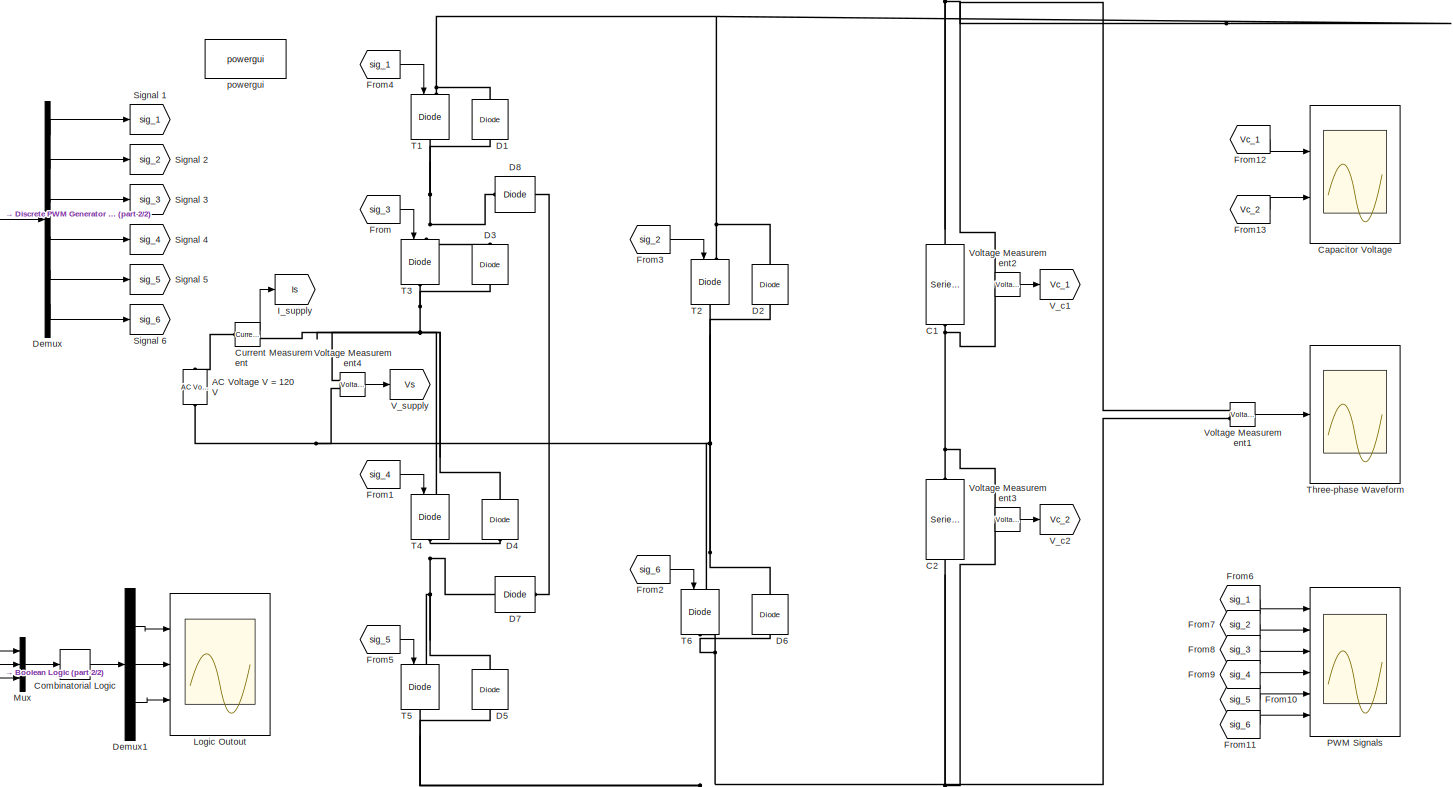
[diagram: root canvas - part 1/2, most of the canvas]
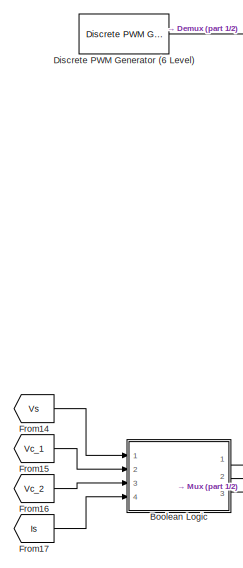
[diagram: root canvas - part 2/2, middle left region]
MODEL slx_a872d994b017
KIND model
CONFIG AbsTol = auto
CONFIG EnableMultiTasking = off
CONFIG FixedStep = auto
CONFIG MaxStep = auto
CONFIG MinStep = auto
CONFIG RelTol = 1e-3
CONFIG SampleTimeConstraint = Unconstrained
CONFIG Solver = VariableStepAuto
CONFIG SolverName = VariableStepAuto
CONFIG StartTime = 0.0
CONFIG StopTime = 0.05
BLOCK [Reference] AC Voltage V = 120 V  REF=powerlib/Electrical
Sources/AC Voltage Source
  Ports = [0, 0, 0, 0, 0, 1, 1]
  SourceBlock = powerlib/Electrical\nSources/AC Voltage Source
  SourceProductBaseCode = PS
  SourceProductName = Simscape Electrical
  SourceType = AC Voltage Source
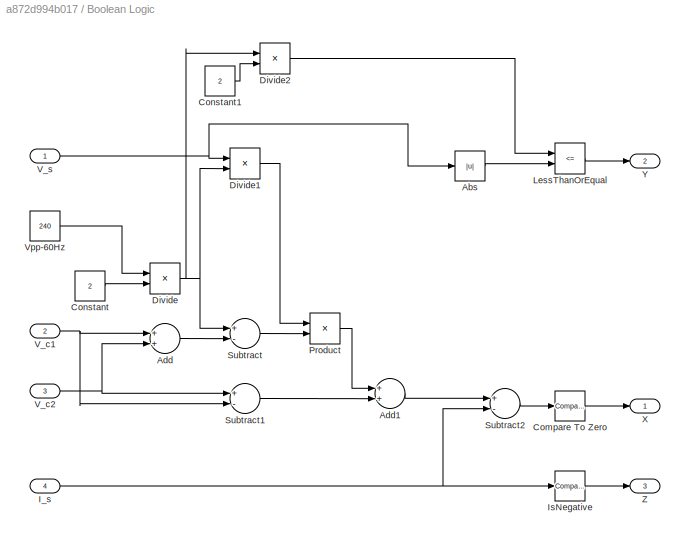
BLOCK [SubSystem] Boolean Logic
  Ports = [4, 3]
  RequestExecContextInheritance = off
BLOCK [Abs] Boolean Logic/Abs
  SaturateOnIntegerOverflow = off
BLOCK [Sum] Boolean Logic/Add
  InputSameDT = off
  OutDataTypeStr = Inherit: Inherit via internal rule
  Ports = [2, 1]
  SaturateOnIntegerOverflow = off
BLOCK [Sum] Boolean Logic/Add1
  InputSameDT = off
  OutDataTypeStr = Inherit: Inherit via internal rule
  Ports = [2, 1]
  SaturateOnIntegerOverflow = off
BLOCK [Reference] Boolean Logic/Compare To Zero  REF=simulink/Logic and Bit
Operations/Compare
To Zero
  Ports = [1, 1]
  SourceBlock = simulink/Logic and Bit\nOperations/Compare\nTo Zero
  SourceProductBaseCode = SL
  SourceProductName = Simulink
  SourceType = Compare To Zero
BLOCK [Constant] Boolean Logic/Constant
  Value = 2
BLOCK [Constant] Boolean Logic/Constant1
  Value = 2
BLOCK [Product] Boolean Logic/Divide
  InputSameDT = off
  Inputs = */
  OutDataTypeStr = Inherit: Inherit via internal rule
  Ports = [2, 1]
  RndMeth = Floor
  SaturateOnIntegerOverflow = off
BLOCK [Product] Boolean Logic/Divide1
  InputSameDT = off
  Inputs = */
  OutDataTypeStr = Inherit: Inherit via internal rule
  Ports = [2, 1]
  RndMeth = Floor
  SaturateOnIntegerOverflow = off
BLOCK [Product] Boolean Logic/Divide2
  InputSameDT = off
  Inputs = */
  OutDataTypeStr = Inherit: Inherit via internal rule
  Ports = [2, 1]
  RndMeth = Floor
  SaturateOnIntegerOverflow = off
BLOCK [Inport] Boolean Logic/I_s
  IconDisplay = Port number
  Port = 4
BLOCK [Reference] Boolean Logic/IsNegative  REF=simulink/Logic and Bit
Operations/Compare
To Zero
  Ports = [1, 1]
  SourceBlock = simulink/Logic and Bit\nOperations/Compare\nTo Zero
  SourceProductBaseCode = SL
  SourceProductName = Simulink
  SourceType = Compare To Zero
BLOCK [RelationalOperator] Boolean Logic/LessThanOrEqual
  InputSameDT = off
  Operator = <=
  OutDataTypeStr = boolean
  Ports = [2, 1]
  RndMeth = Simplest
BLOCK [Product] Boolean Logic/Product
  InputSameDT = off
  OutDataTypeStr = Inherit: Inherit via internal rule
  Ports = [2, 1]
  RndMeth = Floor
  SaturateOnIntegerOverflow = off
BLOCK [Sum] Boolean Logic/Subtract
  InputSameDT = off
  Inputs = +-
  OutDataTypeStr = Inherit: Inherit via internal rule
  Ports = [2, 1]
  SaturateOnIntegerOverflow = off
BLOCK [Sum] Boolean Logic/Subtract1
  InputSameDT = off
  Inputs = +-
  OutDataTypeStr = Inherit: Inherit via internal rule
  Ports = [2, 1]
  SaturateOnIntegerOverflow = off
BLOCK [Sum] Boolean Logic/Subtract2
  InputSameDT = off
  Inputs = +-
  OutDataTypeStr = Inherit: Inherit via internal rule
  Ports = [2, 1]
  SaturateOnIntegerOverflow = off
BLOCK [Inport] Boolean Logic/V_c1
  IconDisplay = Port number
  Port = 2
BLOCK [Inport] Boolean Logic/V_c2
  IconDisplay = Port number
  Port = 3
BLOCK [Inport] Boolean Logic/V_s
  IconDisplay = Port number
BLOCK [Constant] Boolean Logic/Vpp-60Hz
  Value = 240
BLOCK [Outport] Boolean Logic/X
  IconDisplay = Port number
BLOCK [Outport] Boolean Logic/Y
  IconDisplay = Port number
  Port = 2
BLOCK [Outport] Boolean Logic/Z
  IconDisplay = Port number
  Port = 3
BLOCK [Reference] C1  REF=powerlib/Elements/Series RLC Branch
  Ports = [0, 0, 0, 0, 0, 1, 1]
  SourceBlock = powerlib/Elements/Series RLC Branch
  SourceProductBaseCode = PS
  SourceProductName = Simscape Electrical
  SourceType = Series RLC Branch
BLOCK [Reference] C2  REF=powerlib/Elements/Series RLC Branch
  Ports = [0, 0, 0, 0, 0, 1, 1]
  SourceBlock = powerlib/Elements/Series RLC Branch
  SourceProductBaseCode = PS
  SourceProductName = Simscape Electrical
  SourceType = Series RLC Branch
BLOCK [Scope] Capacitor Voltage
  Floating = off
  NumInputPorts = 2
  Ports = [2]
  ScopeSpecificationString = Simulink.scopes.TimeScopeBlockCfg('CurrentConfiguration', extmgr.ConfigurationSet(extmgr.Configuration('Core','General UI',true),extmgr.Configuration('Core','Source UI',true),extmgr.Configuration('Sources','WiredSimulink',true,'DataLoggingVariableName','ScopeData1'),extmgr.Configuration('Visuals','Time Domain',true,'SerializedDisplays',{struct('MinYLimReal','-8.46933','MaxYLimReal','76.17649','YLa...<+2165ch>
BLOCK [CombinatorialLogic] Combinatorial Logic
  TruthTable = [0 0 0; 0 0 1; 0 1 0; 0 1 1; 1 0 0; 1 0 1; 1 1 0; 1 1 1]
BLOCK [Reference] Current Measurement  REF=powerlib/Measurements/Current Measurement
  Ports = [0, 1, 0, 0, 0, 1, 1]
  SourceBlock = powerlib/Measurements/Current Measurement
  SourceProductBaseCode = PS
  SourceProductName = Simscape Electrical
  SourceType = Current Measurement
  UserDataPersistent = on
BLOCK [Reference] D1  REF=powerlib/Power
Electronics/Diode
  Ports = [0, 0, 0, 0, 0, 1, 1]
  SourceBlock = powerlib/Power\nElectronics/Diode
  SourceProductBaseCode = PS
  SourceProductName = Simscape Electrical
  SourceType = Diode
BLOCK [Reference] D2  REF=powerlib/Power
Electronics/Diode
  Ports = [0, 0, 0, 0, 0, 1, 1]
  SourceBlock = powerlib/Power\nElectronics/Diode
  SourceProductBaseCode = PS
  SourceProductName = Simscape Electrical
  SourceType = Diode
BLOCK [Reference] D3  REF=powerlib/Power
Electronics/Diode
  Ports = [0, 0, 0, 0, 0, 1, 1]
  SourceBlock = powerlib/Power\nElectronics/Diode
  SourceProductBaseCode = PS
  SourceProductName = Simscape Electrical
  SourceType = Diode
BLOCK [Reference] D4  REF=powerlib/Power
Electronics/Diode
  Ports = [0, 0, 0, 0, 0, 1, 1]
  SourceBlock = powerlib/Power\nElectronics/Diode
  SourceProductBaseCode = PS
  SourceProductName = Simscape Electrical
  SourceType = Diode
BLOCK [Reference] D5  REF=powerlib/Power
Electronics/Diode
  Ports = [0, 0, 0, 0, 0, 1, 1]
  SourceBlock = powerlib/Power\nElectronics/Diode
  SourceProductBaseCode = PS
  SourceProductName = Simscape Electrical
  SourceType = Diode
BLOCK [Reference] D6  REF=powerlib/Power
Electronics/Diode
  Ports = [0, 0, 0, 0, 0, 1, 1]
  SourceBlock = powerlib/Power\nElectronics/Diode
  SourceProductBaseCode = PS
  SourceProductName = Simscape Electrical
  SourceType = Diode
BLOCK [Reference] D7  REF=powerlib/Power
Electronics/Diode
  Ports = [0, 0, 0, 0, 0, 1, 1]
  SourceBlock = powerlib/Power\nElectronics/Diode
  SourceProductBaseCode = PS
  SourceProductName = Simscape Electrical
  SourceType = Diode
BLOCK [Reference] D8  REF=powerlib/Power
Electronics/Diode
  Ports = [0, 0, 0, 0, 0, 1, 1]
  SourceBlock = powerlib/Power\nElectronics/Diode
  SourceProductBaseCode = PS
  SourceProductName = Simscape Electrical
  SourceType = Diode
BLOCK [Demux] Demux
  DisplayOption = bar
  Outputs = 6
  Ports = [1, 6]
BLOCK [Demux] Demux1
  DisplayOption = bar
  Outputs = 3
  Ports = [1, 3]
BLOCK [Reference] Discrete PWM Generator (6 Level)  REF=powerlib_extras/Discrete 
Control Blocks/Discrete
PWM Generator
  Ports = [0, 1]
  SourceBlock = powerlib_extras/Discrete \nControl Blocks/Discrete\nPWM Generator
  SourceProductBaseCode = PS
  SourceProductName = Simscape Electrical
  SourceType = Discrete PWM Generator
BLOCK [From] From
  GotoTag = sig_3
  IconDisplay = Signal name
BLOCK [From] From1
  GotoTag = sig_4
  IconDisplay = Signal name
BLOCK [From] From10
  GotoTag = sig_5
  IconDisplay = Signal name
BLOCK [From] From11
  GotoTag = sig_6
  IconDisplay = Signal name
BLOCK [From] From12
  GotoTag = Vc_1
  IconDisplay = Signal name
BLOCK [From] From13
  GotoTag = Vc_2
  IconDisplay = Signal name
BLOCK [From] From14
  GotoTag = Vs
  IconDisplay = Signal name
BLOCK [From] From15
  GotoTag = Vc_1
  IconDisplay = Signal name
BLOCK [From] From16
  GotoTag = Vc_2
  IconDisplay = Signal name
BLOCK [From] From17
  GotoTag = Is
  IconDisplay = Signal name
BLOCK [From] From2
  GotoTag = sig_6
  IconDisplay = Signal name
BLOCK [From] From3
  GotoTag = sig_2
  IconDisplay = Signal name
BLOCK [From] From4
  GotoTag = sig_1
  IconDisplay = Signal name
BLOCK [From] From5
  GotoTag = sig_5
  IconDisplay = Signal name
BLOCK [From] From6
  GotoTag = sig_1
  IconDisplay = Signal name
BLOCK [From] From7
  GotoTag = sig_2
  IconDisplay = Signal name
BLOCK [From] From8
  GotoTag = sig_3
  IconDisplay = Signal name
BLOCK [From] From9
  GotoTag = sig_4
  IconDisplay = Signal name
BLOCK [Goto] I_supply
  GotoTag = Is
  IconDisplay = Signal name
BLOCK [Scope] Logic Outout
  Floating = off
  NumInputPorts = 3
  Ports = [3]
  ScopeSpecificationString = Simulink.scopes.TimeScopeBlockCfg('CurrentConfiguration', extmgr.ConfigurationSet(extmgr.Configuration('Core','General UI',true),extmgr.Configuration('Core','Source UI',true),extmgr.Configuration('Sources','WiredSimulink',true,'DataLoggingVariableName','ScopeData1'),extmgr.Configuration('Visuals','Time Domain',true,'SerializedDisplays',{struct('MinYLimReal','-0.125','MaxYLimReal','1.125','YLabelRe...<+3088ch>
BLOCK [Mux] Mux
  DisplayOption = bar
  Inputs = 3
  Ports = [3, 1]
BLOCK [Scope] PWM Signals
  Floating = off
  NumInputPorts = 6
  Ports = [6]
  ScopeSpecificationString = Simulink.scopes.TimeScopeBlockCfg('CurrentConfiguration', extmgr.ConfigurationSet(extmgr.Configuration('Core','General UI',true),extmgr.Configuration('Core','Source UI',true),extmgr.Configuration('Sources','WiredSimulink',true,'DataLoggingSaveFormat','StructureWithTime','DataLoggingLimitDataPoints',true,'DataLoggingDecimation','1','DataLoggingDecimateData',true,'DataLoggingVariableName','ScopeData...<+5127ch>
BLOCK [Goto] Signal 1
  GotoTag = sig_1
  IconDisplay = Signal name
BLOCK [Goto] Signal 2
  GotoTag = sig_2
  IconDisplay = Signal name
BLOCK [Goto] Signal 3
  GotoTag = sig_3
  IconDisplay = Signal name
BLOCK [Goto] Signal 4
  GotoTag = sig_4
  IconDisplay = Signal name
BLOCK [Goto] Signal 5
  GotoTag = sig_5
  IconDisplay = Signal name
BLOCK [Goto] Signal 6
  GotoTag = sig_6
  IconDisplay = Signal name
BLOCK [Reference] T1  REF=powerlib/Power
Electronics/IGBT//Diode
  Ports = [1, 0, 0, 0, 0, 1, 1]
  SourceBlock = powerlib/Power\nElectronics/IGBT//Diode
  SourceProductBaseCode = PS
  SourceProductName = Simscape Electrical
  SourceType = IGBT/Diode
BLOCK [Reference] T2  REF=powerlib/Power
Electronics/IGBT//Diode
  Ports = [1, 0, 0, 0, 0, 1, 1]
  SourceBlock = powerlib/Power\nElectronics/IGBT//Diode
  SourceProductBaseCode = PS
  SourceProductName = Simscape Electrical
  SourceType = IGBT/Diode
BLOCK [Reference] T3  REF=powerlib/Power
Electronics/IGBT//Diode
  Ports = [1, 0, 0, 0, 0, 1, 1]
  SourceBlock = powerlib/Power\nElectronics/IGBT//Diode
  SourceProductBaseCode = PS
  SourceProductName = Simscape Electrical
  SourceType = IGBT/Diode
BLOCK [Reference] T4  REF=powerlib/Power
Electronics/IGBT//Diode
  Ports = [1, 0, 0, 0, 0, 1, 1]
  SourceBlock = powerlib/Power\nElectronics/IGBT//Diode
  SourceProductBaseCode = PS
  SourceProductName = Simscape Electrical
  SourceType = IGBT/Diode
BLOCK [Reference] T5  REF=powerlib/Power
Electronics/IGBT//Diode
  Ports = [1, 0, 0, 0, 0, 1, 1]
  SourceBlock = powerlib/Power\nElectronics/IGBT//Diode
  SourceProductBaseCode = PS
  SourceProductName = Simscape Electrical
  SourceType = IGBT/Diode
BLOCK [Reference] T6  REF=powerlib/Power
Electronics/IGBT//Diode
  Ports = [1, 0, 0, 0, 0, 1, 1]
  SourceBlock = powerlib/Power\nElectronics/IGBT//Diode
  SourceProductBaseCode = PS
  SourceProductName = Simscape Electrical
  SourceType = IGBT/Diode
BLOCK [Scope] Three-phase Waveform
  Floating = off
  NumInputPorts = 1
  Ports = [1]
  ScopeSpecificationString = Simulink.scopes.TimeScopeBlockCfg('CurrentConfiguration', extmgr.ConfigurationSet(extmgr.Configuration('Core','General UI',true),extmgr.Configuration('Core','Source UI',true),extmgr.Configuration('Sources','WiredSimulink',true),extmgr.Configuration('Visuals','Time Domain',true,'SerializedDisplays',{struct('MinYLimReal','-18.15368','MaxYLimReal','163.25574','YLabelReal','','MinYLimMag','0.00000','M...<+1481ch>
BLOCK [Goto] V_c1
  GotoTag = Vc_1
  IconDisplay = Signal name
BLOCK [Goto] V_c2
  GotoTag = Vc_2
  IconDisplay = Signal name
BLOCK [Goto] V_supply
  GotoTag = Vs
  IconDisplay = Signal name
BLOCK [Reference] Voltage Measurement1  REF=powerlib/Measurements/Voltage Measurement
  Ports = [0, 1, 0, 0, 0, 2]
  SourceBlock = powerlib/Measurements/Voltage Measurement
  SourceProductBaseCode = PS
  SourceProductName = Simscape Electrical
  SourceType = Voltage Measurement
  UserDataPersistent = on
BLOCK [Reference] Voltage Measurement2  REF=powerlib/Measurements/Voltage Measurement
  Ports = [0, 1, 0, 0, 0, 2]
  SourceBlock = powerlib/Measurements/Voltage Measurement
  SourceProductBaseCode = PS
  SourceProductName = Simscape Electrical
  SourceType = Voltage Measurement
  UserDataPersistent = on
BLOCK [Reference] Voltage Measurement3  REF=powerlib/Measurements/Voltage Measurement
  Ports = [0, 1, 0, 0, 0, 2]
  SourceBlock = powerlib/Measurements/Voltage Measurement
  SourceProductBaseCode = PS
  SourceProductName = Simscape Electrical
  SourceType = Voltage Measurement
  UserDataPersistent = on
BLOCK [Reference] Voltage Measurement4  REF=powerlib/Measurements/Voltage Measurement
  Ports = [0, 1, 0, 0, 0, 2]
  SourceBlock = powerlib/Measurements/Voltage Measurement
  SourceProductBaseCode = PS
  SourceProductName = Simscape Electrical
  SourceType = Voltage Measurement
  UserDataPersistent = on
BLOCK [Reference] powergui  REF=powerlib/powergui
  Ports = []
  Priority = 1
  SourceBlock = powerlib/powergui
  SourceProductBaseCode = PS
  SourceProductName = Simscape Electrical
  SourceType = PSB option menu block
LINE Boolean Logic/Abs:1 -> Boolean Logic/LessThanOrEqual:2
LINE Boolean Logic/Add1:1 -> Boolean Logic/Subtract2:1
LINE Boolean Logic/Add:1 -> Boolean Logic/Subtract:2
LINE Boolean Logic/Compare To Zero:1 -> Boolean Logic/X:1
LINE Boolean Logic/Constant1:1 -> Boolean Logic/Divide2:2
LINE Boolean Logic/Constant:1 -> Boolean Logic/Divide:2
LINE Boolean Logic/Divide1:1 -> Boolean Logic/Product:1
LINE Boolean Logic/Divide2:1 -> Boolean Logic/LessThanOrEqual:1
NET Boolean Logic/Divide:1 -> Boolean Logic/Divide1:2, Boolean Logic/Divide2:1, Boolean Logic/Subtract:1
NET Boolean Logic/I_s:1 -> Boolean Logic/IsNegative:1, Boolean Logic/Subtract2:2
LINE Boolean Logic/IsNegative:1 -> Boolean Logic/Z:1
LINE Boolean Logic/LessThanOrEqual:1 -> Boolean Logic/Y:1
LINE Boolean Logic/Product:1 -> Boolean Logic/Add1:1
LINE Boolean Logic/Subtract1:1 -> Boolean Logic/Add1:2
LINE Boolean Logic/Subtract2:1 -> Boolean Logic/Compare To Zero:1
LINE Boolean Logic/Subtract:1 -> Boolean Logic/Product:2
NET Boolean Logic/V_c1:1 -> Boolean Logic/Add:1, Boolean Logic/Subtract1:2
NET Boolean Logic/V_c2:1 -> Boolean Logic/Add:2, Boolean Logic/Subtract1:1
NET Boolean Logic/V_s:1 -> Boolean Logic/Abs:1, Boolean Logic/Divide1:1
LINE Boolean Logic/Vpp-60Hz:1 -> Boolean Logic/Divide:1
LINE Boolean Logic:1 -> Mux:1
LINE Boolean Logic:2 -> Mux:2
LINE Boolean Logic:3 -> Mux:3
LINE Combinatorial Logic:1 -> Demux1:1
LINE Current Measurement:1 -> I_supply:1
LINE Demux1:1 -> Logic Outout:1
LINE Demux1:2 -> Logic Outout:2
LINE Demux1:3 -> Logic Outout:3
LINE Demux:1 -> Signal 1:1
LINE Demux:2 -> Signal 2:1
LINE Demux:3 -> Signal 3:1
LINE Demux:4 -> Signal 4:1
LINE Demux:5 -> Signal 5:1
LINE Demux:6 -> Signal 6:1
LINE Discrete PWM Generator (6 Level):1 -> Demux:1
LINE From10:1 -> PWM Signals:5
LINE From11:1 -> PWM Signals:6
LINE From12:1 -> Capacitor Voltage:1
LINE From13:1 -> Capacitor Voltage:2
LINE From14:1 -> Boolean Logic:1
LINE From15:1 -> Boolean Logic:2
LINE From16:1 -> Boolean Logic:3
LINE From17:1 -> Boolean Logic:4
LINE From1:1 -> T4:1
LINE From2:1 -> T6:1
LINE From3:1 -> T2:1
LINE From4:1 -> T1:1
LINE From5:1 -> T5:1
LINE From6:1 -> PWM Signals:1
LINE From7:1 -> PWM Signals:2
LINE From8:1 -> PWM Signals:3
LINE From9:1 -> PWM Signals:4
LINE From:1 -> T3:1
LINE Mux:1 -> Combinatorial Logic:1
LINE Voltage Measurement1:1 -> Three-phase Waveform:1
LINE Voltage Measurement2:1 -> V_c1:1
LINE Voltage Measurement3:1 -> V_c2:1
LINE Voltage Measurement4:1 -> V_supply:1
PNET net1: AC Voltage V = 120 V:LConn1 -- D2:LConn1 -- D6:RConn1 -- T2:RConn1 -- T6:LConn1 -- Voltage Measurement4:LConn2
PLINE AC Voltage V = 120 V:RConn1 -- Current Measurement:LConn1
PNET net2: C1:LConn1 -- D1:RConn1 -- D2:RConn1 -- T1:LConn1 -- T2:LConn1 -- Voltage Measurement1:LConn1 -- Voltage Measurement2:LConn1
PNET net3: C1:RConn1 -- C2:LConn1 -- Voltage Measurement2:LConn2 -- Voltage Measurement3:LConn1
PNET net4: C2:RConn1 -- D5:LConn1 -- D6:LConn1 -- T5:RConn1 -- T6:RConn1 -- Voltage Measurement1:LConn2 -- Voltage Measurement3:LConn2
PNET net5: Current Measurement:RConn1 -- D3:LConn1 -- D4:RConn1 -- T3:RConn1 -- T4:LConn1 -- Voltage Measurement4:LConn1
PNET net6: D1:LConn1 -- D3:RConn1 -- D8:RConn1 -- T1:RConn1 -- T3:LConn1
PNET net7: D4:LConn1 -- D5:RConn1 -- D7:LConn1 -- T4:RConn1 -- T5:LConn1
PLINE D7:RConn1 -- D8:LConn1
note: NET lines group one-source signal fan-out (src -> all destinations, sorted); 1:1 wires keep LINE; PNET lines group multi-terminal physical nets as a canonical sorted terminal list (undirected conserving connections); 2-terminal nets keep the pairwise PLINE form
